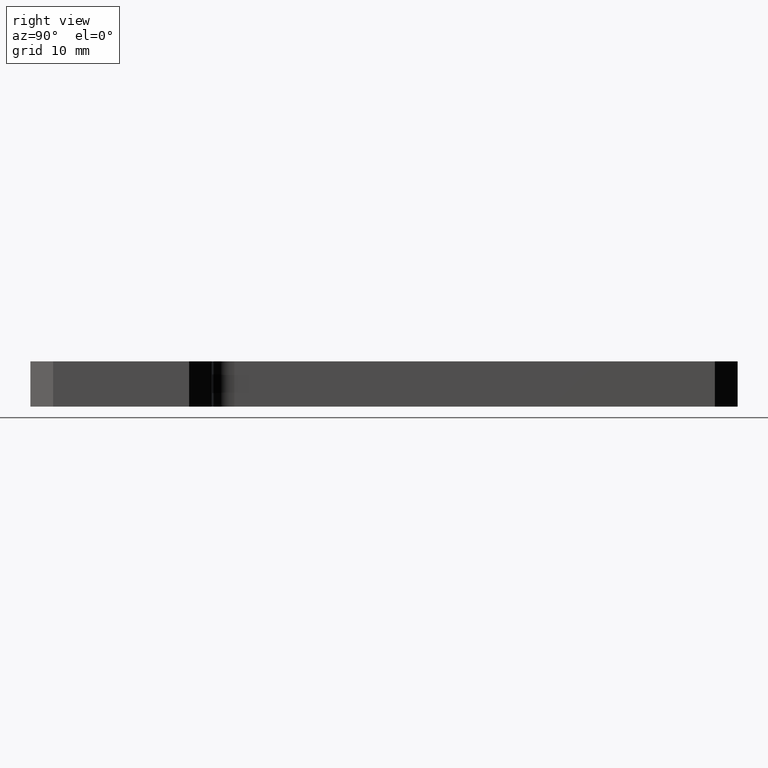
[diagram: clean part render]
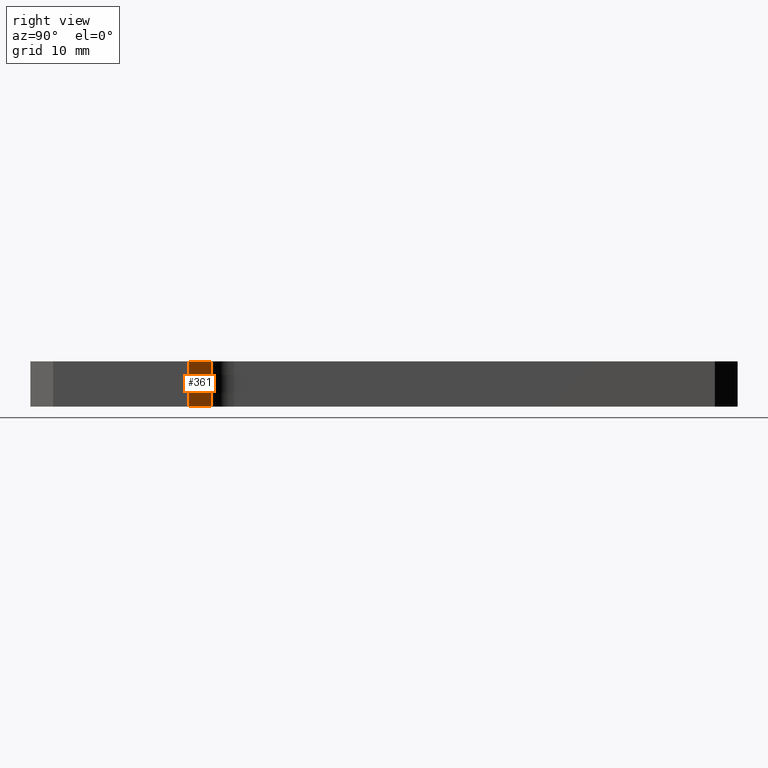
[diagram: same view with one face highlighted and labeled with its STEP entity id]
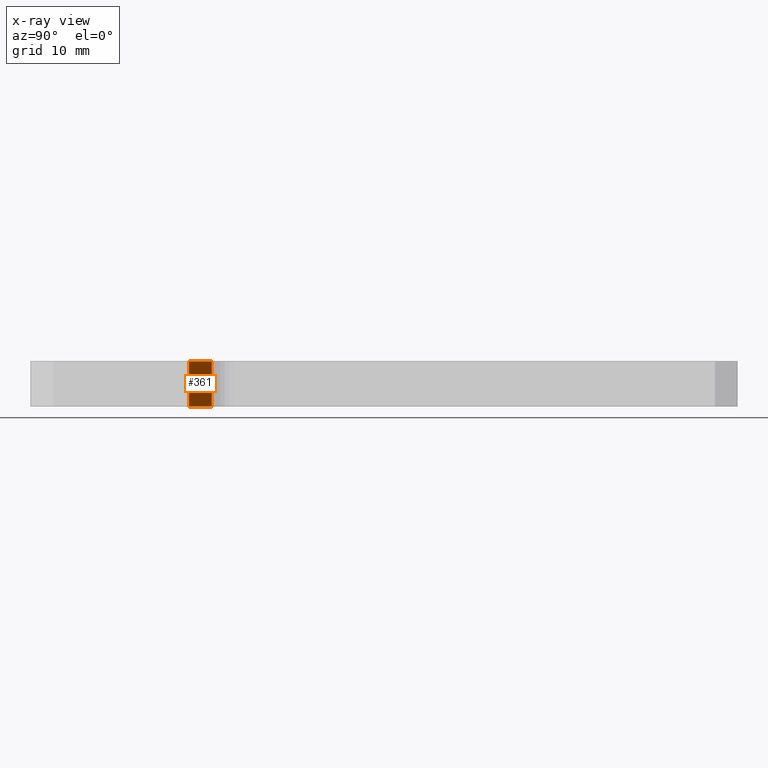
[diagram: x-ray of the same camera — body ghosted, the highlighted face saturated]
A machine part, right view. The second image highlights one B-rep face of the part: STEP entity #361.
The next image is the same camera in x-ray: the body ghosted, the highlighted face saturated — about 0% of this face is hidden behind the body in this view.
In plain terms, the highlighted planar face has unit normal (-0.7071, -0.7071, 0).
Its self-contained STEP definition (entity closure, byte-faithful):
#1 = VECTOR ( 'NONE', #173, 39.37007874015748100 ) ;
#69 = LINE ( 'NONE', #244, #80 ) ;
#73 = LINE ( 'NONE', #255, #76 ) ;
#76 = VECTOR ( 'NONE', #256, 39.37007874015748100 ) ;
#80 = VECTOR ( 'NONE', #259, 39.37007874015748100 ) ;
#109 = LINE ( 'NONE', #303, #111 ) ;
#111 = VECTOR ( 'NONE', #305, 39.37007874015748100 ) ;
#168 = CARTESIAN_POINT ( 'NONE',  ( 1.000000000000000000, 0.8749999999999990000, 0.0000000000000000000 ) ) ;
#173 = DIRECTION ( 'NONE',  ( -0.7071067811865490200, 0.7071067811865460200, -0.0000000000000000000 ) ) ;
#244 = CARTESIAN_POINT ( 'NONE',  ( 1.000000000000000000, 0.8749999999999990000, -0.2500000000000000000 ) ) ;
#255 = CARTESIAN_POINT ( 'NONE',  ( 0.8749999999999984500, 1.000000000000000000, -0.2500000000000000000 ) ) ;
#256 = DIRECTION ( 'NONE',  ( 0.0000000000000000000, 0.0000000000000000000, -1.000000000000000000 ) ) ;
#259 = DIRECTION ( 'NONE',  ( 0.0000000000000000000, 0.0000000000000000000, 1.000000000000000000 ) ) ;
#303 = CARTESIAN_POINT ( 'NONE',  ( 0.9374999999999974500, 0.9375000000000015500, -0.2500000000000000000 ) ) ;
#305 = DIRECTION ( 'NONE',  ( 0.7071067811865490200, -0.7071067811865460200, -0.0000000000000000000 ) ) ;
#361 = ADVANCED_FACE ( 'NONE', ( #824 ), #674, .F. ) ;
#435 = ORIENTED_EDGE ( 'NONE', *, *, #942, .F. ) ;
#436 = ORIENTED_EDGE ( 'NONE', *, *, #921, .F. ) ;
#437 = ORIENTED_EDGE ( 'NONE', *, *, #862, .F. ) ;
#438 = ORIENTED_EDGE ( 'NONE', *, *, #923, .F. ) ;
#476 = EDGE_LOOP ( 'NONE', ( #435, #436, #437, #438 ) ) ;
#583 = VERTEX_POINT ( 'NONE', #725 ) ;
#588 = VERTEX_POINT ( 'NONE', #730 ) ;
#590 = VERTEX_POINT ( 'NONE', #732 ) ;
#593 = VERTEX_POINT ( 'NONE', #735 ) ;
#670 = CARTESIAN_POINT ( 'NONE',  ( 1.000000000000000000, 0.8749999999999990000, -0.2500000000000000000 ) ) ;
#674 = PLANE ( 'NONE',  #897 ) ;
#676 = DIRECTION ( 'NONE',  ( -0.7071067811865460200, -0.7071067811865490200, 0.0000000000000000000 ) ) ;
#677 = DIRECTION ( 'NONE',  ( 0.7071067811865490200, -0.7071067811865460200, 0.0000000000000000000 ) ) ;
#725 = CARTESIAN_POINT ( 'NONE',  ( 0.8749999999999987800, 1.000000000000000000, -0.2500000000000000000 ) ) ;
#730 = CARTESIAN_POINT ( 'NONE',  ( 0.8749999999999984500, 1.000000000000000000, 0.0000000000000000000 ) ) ;
#732 = CARTESIAN_POINT ( 'NONE',  ( 1.000000000000000000, 0.8749999999999992200, -0.2500000000000000000 ) ) ;
#735 = CARTESIAN_POINT ( 'NONE',  ( 1.000000000000000000, 0.8749999999999990000, 0.0000000000000000000 ) ) ;
#785 = LINE ( 'NONE', #168, #1 ) ;
#824 = FACE_OUTER_BOUND ( 'NONE', #476, .T. ) ;
#862 = EDGE_CURVE ( 'NONE', #593, #588, #785, .T. ) ;
#897 = AXIS2_PLACEMENT_3D ( 'NONE', #670, #676, #677 ) ;
#921 = EDGE_CURVE ( 'NONE', #588, #583, #73, .T. ) ;
#923 = EDGE_CURVE ( 'NONE', #590, #593, #69, .T. ) ;
#942 = EDGE_CURVE ( 'NONE', #583, #590, #109, .T. ) ;